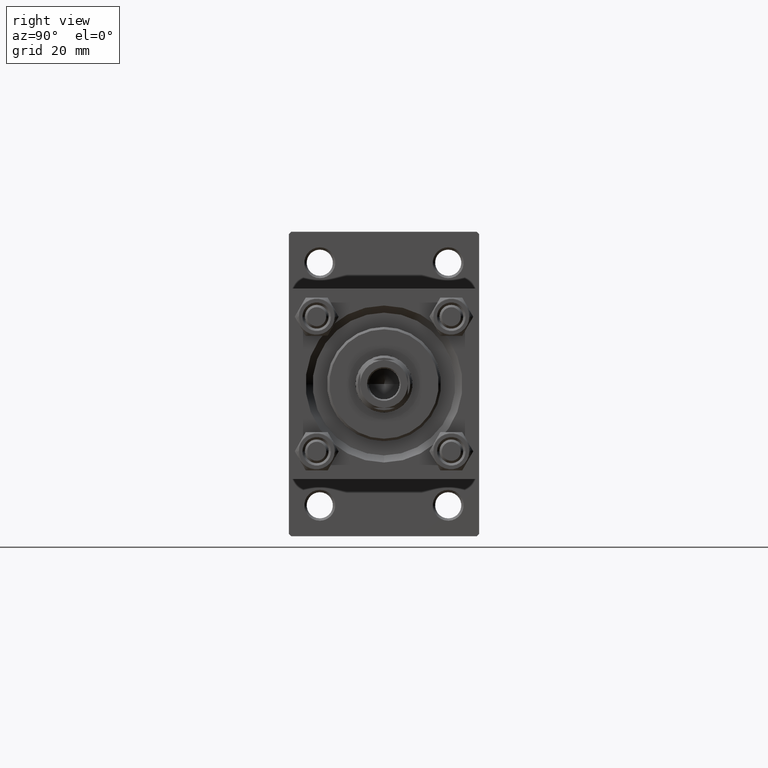
[diagram: clean part render]
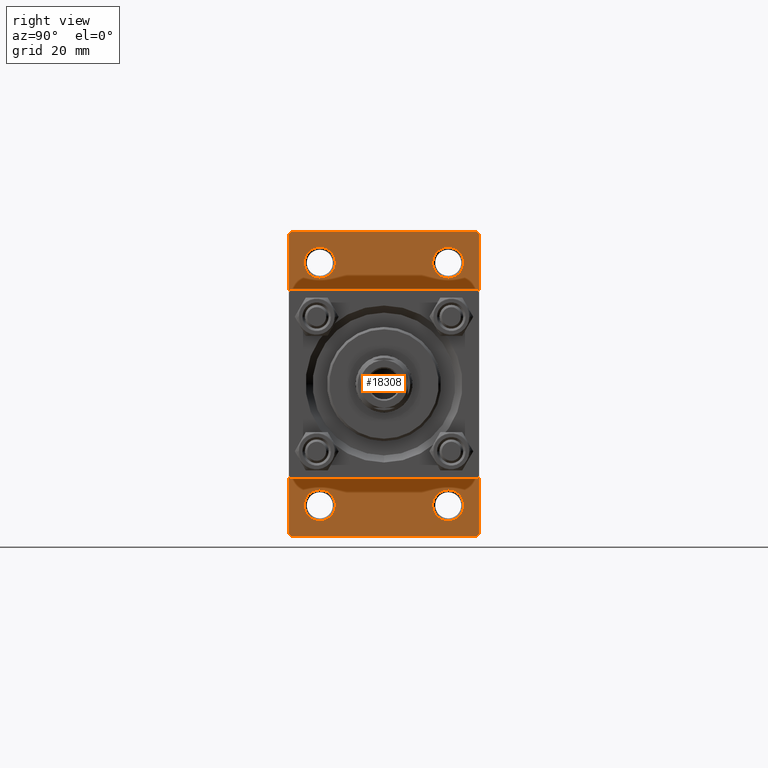
[diagram: same view with one face highlighted and labeled with its STEP entity id]
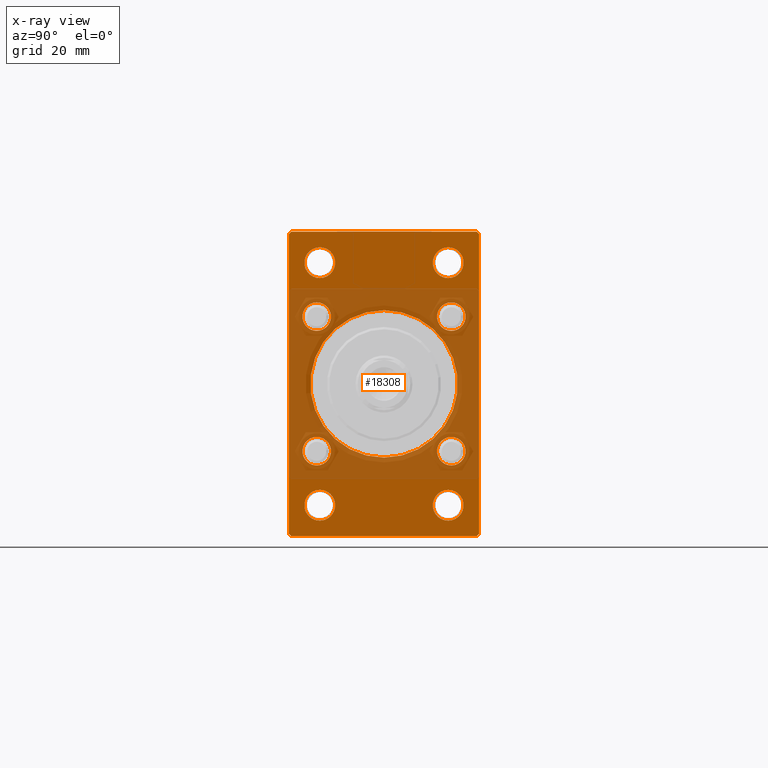
[diagram: x-ray of the same camera — body ghosted, the highlighted face saturated]
A machine part, right view. The second image highlights one B-rep face of the part: STEP entity #18308.
The next image is the same camera in x-ray: the body ghosted, the highlighted face saturated — about 47% of this face is hidden behind the body in this view.
In plain terms, the highlighted planar face has unit normal (-1, 0, 0).
Its self-contained STEP definition (entity closure, byte-faithful):
#479 = DIRECTION ( 'NONE',  ( 0.000000000000000000, 0.000000000000000000, 1.000000000000000000 ) ) ;
#683 = CARTESIAN_POINT ( 'NONE',  ( 24.00000000000000000, -13.49999999999999822, 25.50000000000000000 ) ) ;
#846 = DIRECTION ( 'NONE',  ( 0.000000000000000000, 0.000000000000000000, 1.000000000000000000 ) ) ;
#1159 = ORIENTED_EDGE ( 'NONE', *, *, #47467, .T. ) ;
#1179 = DIRECTION ( 'NONE',  ( -0.000000000000000000, 0.000000000000000000, 1.000000000000000000 ) ) ;
#1367 = DIRECTION ( 'NONE',  ( 0.000000000000000000, 0.000000000000000000, 1.000000000000000000 ) ) ;
#1819 = VERTEX_POINT ( 'NONE', #5042 ) ;
#2037 = CARTESIAN_POINT ( 'NONE',  ( 24.00000000000000000, 19.99999999999999645, -31.50000000000000000 ) ) ;
#2430 = CIRCLE ( 'NONE', #21766, 3.000000000000031974 ) ;
#2528 = EDGE_CURVE ( 'NONE', #35474, #29327, #16515, .T. ) ;
#2803 = DIRECTION ( 'NONE',  ( -1.000000000000000000, -0.000000000000000000, -0.000000000000000000 ) ) ;
#2826 = ORIENTED_EDGE ( 'NONE', *, *, #31630, .T. ) ;
#2852 = DIRECTION ( 'NONE',  ( 0.000000000000000000, 0.000000000000000000, 1.000000000000000000 ) ) ;
#3137 = EDGE_LOOP ( 'NONE', ( #46892, #22978, #37157, #27945, #15565, #35296, #31860, #47646 ) ) ;
#3308 = LINE ( 'NONE', #15152, #22404 ) ;
#3360 = CARTESIAN_POINT ( 'NONE',  ( 24.00000000000000000, -7.038826752868131828E-16, -15.50000000000000000 ) ) ;
#3566 = AXIS2_PLACEMENT_3D ( 'NONE', #6607, #2803, #44702 ) ;
#3744 = EDGE_CURVE ( 'NONE', #1819, #38343, #7910, .T. ) ;
#3836 = DIRECTION ( 'NONE',  ( -1.000000000000000000, -0.000000000000000000, -0.000000000000000000 ) ) ;
#3863 = EDGE_CURVE ( 'NONE', #26877, #15930, #15973, .T. ) ;
#4356 = CARTESIAN_POINT ( 'NONE',  ( 24.00000000000000000, -13.49999999999999822, 25.50000000000000000 ) ) ;
#4721 = FACE_BOUND ( 'NONE', #45243, .T. ) ;
#4783 = AXIS2_PLACEMENT_3D ( 'NONE', #11330, #10338, #22419 ) ;
#4974 = DIRECTION ( 'NONE',  ( -1.000000000000000000, 0.000000000000000000, -0.000000000000000000 ) ) ;
#5042 = CARTESIAN_POINT ( 'NONE',  ( 24.00000000000000000, 13.50000000000000178, 28.74999999999998579 ) ) ;
#5046 = CIRCLE ( 'NONE', #27607, 3.000000000000031974 ) ;
#5214 = CARTESIAN_POINT ( 'NONE',  ( 24.00000000000000000, 0.000000000000000000, 0.000000000000000000 ) ) ;
#5298 = DIRECTION ( 'NONE',  ( 0.000000000000000000, 0.000000000000000000, 1.000000000000000000 ) ) ;
#5543 = EDGE_CURVE ( 'NONE', #46644, #23282, #41028, .T. ) ;
#6012 = ORIENTED_EDGE ( 'NONE', *, *, #38268, .T. ) ;
#6034 = DIRECTION ( 'NONE',  ( 0.000000000000000000, 0.000000000000000000, -1.000000000000000000 ) ) ;
#6164 = DIRECTION ( 'NONE',  ( -1.000000000000000000, -0.000000000000000000, -0.000000000000000000 ) ) ;
#6512 = AXIS2_PLACEMENT_3D ( 'NONE', #22505, #3836, #2852 ) ;
#6588 = VERTEX_POINT ( 'NONE', #47852 ) ;
#6607 = CARTESIAN_POINT ( 'NONE',  ( 24.00000000000000000, 14.14999999999999858, -14.15000000000000036 ) ) ;
#7176 = DIRECTION ( 'NONE',  ( -1.000000000000000000, -0.000000000000000000, -0.000000000000000000 ) ) ;
#7419 = DIRECTION ( 'NONE',  ( 0.000000000000000000, -1.000000000000000000, 0.000000000000000000 ) ) ;
#7535 = CIRCLE ( 'NONE', #35721, 3.249999999999988898 ) ;
#7910 = CIRCLE ( 'NONE', #24028, 3.249999999999988898 ) ;
#7911 = DIRECTION ( 'NONE',  ( -0.000000000000000000, -0.7071067811865426878, -0.7071067811865524577 ) ) ;
#7915 = CARTESIAN_POINT ( 'NONE',  ( 24.00000000000000000, 14.14999999999999858, 14.15000000000000036 ) ) ;
#8157 = LINE ( 'NONE', #19241, #39798 ) ;
#8504 = DIRECTION ( 'NONE',  ( 0.000000000000000000, 0.000000000000000000, 1.000000000000000000 ) ) ;
#8508 = FACE_BOUND ( 'NONE', #12822, .T. ) ;
#8602 = ORIENTED_EDGE ( 'NONE', *, *, #46047, .T. ) ;
#8920 = AXIS2_PLACEMENT_3D ( 'NONE', #30475, #22170, #45882 ) ;
#9011 = FACE_BOUND ( 'NONE', #17672, .T. ) ;
#9056 = DIRECTION ( 'NONE',  ( -1.000000000000000000, -0.000000000000000000, -0.000000000000000000 ) ) ;
#9275 = ORIENTED_EDGE ( 'NONE', *, *, #33301, .T. ) ;
#9620 = CARTESIAN_POINT ( 'NONE',  ( 24.00000000000000000, 13.50000000000000178, 25.50000000000000000 ) ) ;
#9688 = EDGE_CURVE ( 'NONE', #26890, #24531, #12811, .T. ) ;
#10338 = DIRECTION ( 'NONE',  ( -1.000000000000000000, -0.000000000000000000, -0.000000000000000000 ) ) ;
#10657 = EDGE_CURVE ( 'NONE', #35474, #36608, #36088, .T. ) ;
#10896 = LINE ( 'NONE', #23211, #23467 ) ;
#10956 = VERTEX_POINT ( 'NONE', #32932 ) ;
#11027 = CARTESIAN_POINT ( 'NONE',  ( 24.00000000000000000, 13.50000000000000178, -22.25000000000001066 ) ) ;
#11248 = CIRCLE ( 'NONE', #15273, 3.249999999999988898 ) ;
#11330 = CARTESIAN_POINT ( 'NONE',  ( 24.00000000000000000, -14.14999999999999503, 14.15000000000000391 ) ) ;
#11565 = EDGE_CURVE ( 'NONE', #38343, #1819, #35566, .T. ) ;
#11890 = VERTEX_POINT ( 'NONE', #44389 ) ;
#11962 = DIRECTION ( 'NONE',  ( 0.000000000000000000, 0.000000000000000000, 1.000000000000000000 ) ) ;
#11991 = CARTESIAN_POINT ( 'NONE',  ( 24.00000000000000000, 19.99999999999999645, -31.99999999999999289 ) ) ;
#12811 = LINE ( 'NONE', #38825, #24204 ) ;
#12822 = EDGE_LOOP ( 'NONE', ( #31005, #38272 ) ) ;
#12982 = VECTOR ( 'NONE', #32296, 1000.000000000000000 ) ;
#13371 = VERTEX_POINT ( 'NONE', #25268 ) ;
#13535 = CARTESIAN_POINT ( 'NONE',  ( 24.00000000000000000, 14.14999999999999858, -17.15000000000003411 ) ) ;
#13921 = EDGE_CURVE ( 'NONE', #23282, #46644, #46807, .T. ) ;
#13933 = AXIS2_PLACEMENT_3D ( 'NONE', #5214, #4974, #1179 ) ;
#15152 = CARTESIAN_POINT ( 'NONE',  ( 24.00000000000000000, 19.49999999999999645, 32.00000000000000000 ) ) ;
#15273 = AXIS2_PLACEMENT_3D ( 'NONE', #26175, #37803, #34017 ) ;
#15565 = ORIENTED_EDGE ( 'NONE', *, *, #43104, .T. ) ;
#15930 = VERTEX_POINT ( 'NONE', #3360 ) ;
#15973 = CIRCLE ( 'NONE', #44184, 15.50000000000000000 ) ;
#15978 = VERTEX_POINT ( 'NONE', #33391 ) ;
#16014 = DIRECTION ( 'NONE',  ( 1.000000000000000000, 0.000000000000000000, 0.000000000000000000 ) ) ;
#16319 = DIRECTION ( 'NONE',  ( -1.000000000000000000, -0.000000000000000000, -0.000000000000000000 ) ) ;
#16515 = LINE ( 'NONE', #11991, #47345 ) ;
#16560 = FACE_BOUND ( 'NONE', #39095, .T. ) ;
#16851 = CARTESIAN_POINT ( 'NONE',  ( 24.00000000000000000, 14.14999999999999858, -14.15000000000000036 ) ) ;
#17672 = EDGE_LOOP ( 'NONE', ( #41627, #30243 ) ) ;
#17834 = DIRECTION ( 'NONE',  ( -1.000000000000000000, -0.000000000000000000, -0.000000000000000000 ) ) ;
#17843 = AXIS2_PLACEMENT_3D ( 'NONE', #32789, #39866, #5298 ) ;
#18161 = EDGE_LOOP ( 'NONE', ( #46162, #44123 ) ) ;
#18304 = CIRCLE ( 'NONE', #48104, 3.000000000000031974 ) ;
#18308 = ADVANCED_FACE ( 'NONE', ( #24611, #43080, #35744, #4721, #16560, #39781, #8508, #32193, #9011, #35498 ), #23876, .F. ) ;
#18409 = ORIENTED_EDGE ( 'NONE', *, *, #46573, .T. ) ;
#18465 = VERTEX_POINT ( 'NONE', #13535 ) ;
#18470 = CARTESIAN_POINT ( 'NONE',  ( 24.00000000000000000, 19.49999999999999645, -31.99999999999999289 ) ) ;
#18523 = CARTESIAN_POINT ( 'NONE',  ( 24.00000000000000000, -20.00000000000000355, 31.50000000000000711 ) ) ;
#18695 = DIRECTION ( 'NONE',  ( 0.000000000000000000, -0.7071067811865474617, 0.7071067811865474617 ) ) ;
#19157 = AXIS2_PLACEMENT_3D ( 'NONE', #4356, #30832, #46239 ) ;
#19241 = CARTESIAN_POINT ( 'NONE',  ( 24.00000000000000000, 19.99999999999999645, 32.00000000000000000 ) ) ;
#20210 = CARTESIAN_POINT ( 'NONE',  ( 24.00000000000000000, 19.99999999999999645, 31.50000000000000000 ) ) ;
#20454 = DIRECTION ( 'NONE',  ( 0.000000000000000000, 0.000000000000000000, 1.000000000000000000 ) ) ;
#21321 = AXIS2_PLACEMENT_3D ( 'NONE', #43932, #34672, #11962 ) ;
#21672 = EDGE_CURVE ( 'NONE', #36410, #36608, #33751, .T. ) ;
#21766 = AXIS2_PLACEMENT_3D ( 'NONE', #7915, #43230, #846 ) ;
#22122 = CARTESIAN_POINT ( 'NONE',  ( 24.00000000000000000, 13.50000000000000178, -28.74999999999998579 ) ) ;
#22170 = DIRECTION ( 'NONE',  ( -1.000000000000000000, -0.000000000000000000, -0.000000000000000000 ) ) ;
#22404 = VECTOR ( 'NONE', #18695, 1000.000000000000114 ) ;
#22419 = DIRECTION ( 'NONE',  ( 0.000000000000000000, 0.000000000000000000, 1.000000000000000000 ) ) ;
#22505 = CARTESIAN_POINT ( 'NONE',  ( 24.00000000000000000, -13.49999999999999822, -25.50000000000000000 ) ) ;
#22871 = EDGE_CURVE ( 'NONE', #15978, #18465, #18304, .T. ) ;
#22923 = VERTEX_POINT ( 'NONE', #38840 ) ;
#22978 = ORIENTED_EDGE ( 'NONE', *, *, #10657, .T. ) ;
#23211 = CARTESIAN_POINT ( 'NONE',  ( 24.00000000000000000, -19.49999999999999645, -31.99999999999999289 ) ) ;
#23282 = VERTEX_POINT ( 'NONE', #25600 ) ;
#23467 = VECTOR ( 'NONE', #34838, 1000.000000000000000 ) ;
#23521 = CARTESIAN_POINT ( 'NONE',  ( 24.00000000000000000, -19.49999999999999645, -31.99999999999999289 ) ) ;
#23876 = PLANE ( 'NONE',  #13933 ) ;
#23934 = ORIENTED_EDGE ( 'NONE', *, *, #37967, .T. ) ;
#24028 = AXIS2_PLACEMENT_3D ( 'NONE', #29419, #17834, #40287 ) ;
#24204 = VECTOR ( 'NONE', #35033, 1000.000000000000000 ) ;
#24531 = VERTEX_POINT ( 'NONE', #31577 ) ;
#24611 = FACE_BOUND ( 'NONE', #18161, .T. ) ;
#25268 = CARTESIAN_POINT ( 'NONE',  ( 24.00000000000000000, 19.49999999999999645, 32.00000000000000000 ) ) ;
#25320 = EDGE_CURVE ( 'NONE', #29735, #11890, #43343, .T. ) ;
#25484 = DIRECTION ( 'NONE',  ( 0.000000000000000000, 0.000000000000000000, 1.000000000000000000 ) ) ;
#25533 = VERTEX_POINT ( 'NONE', #42398 ) ;
#25564 = CARTESIAN_POINT ( 'NONE',  ( 24.00000000000000000, -13.49999999999999822, -22.25000000000001066 ) ) ;
#25597 = EDGE_CURVE ( 'NONE', #36410, #13371, #3308, .T. ) ;
#25600 = CARTESIAN_POINT ( 'NONE',  ( 24.00000000000000000, -14.14999999999999503, 11.15000000000004121 ) ) ;
#25867 = AXIS2_PLACEMENT_3D ( 'NONE', #9620, #28522, #20454 ) ;
#25888 = CIRCLE ( 'NONE', #17843, 2.999999999999962697 ) ;
#26175 = CARTESIAN_POINT ( 'NONE',  ( 24.00000000000000000, -13.49999999999999822, -25.50000000000000000 ) ) ;
#26877 = VERTEX_POINT ( 'NONE', #29194 ) ;
#26890 = VERTEX_POINT ( 'NONE', #40813 ) ;
#27607 = AXIS2_PLACEMENT_3D ( 'NONE', #44792, #7176, #29383 ) ;
#27945 = ORIENTED_EDGE ( 'NONE', *, *, #25597, .T. ) ;
#28522 = DIRECTION ( 'NONE',  ( -1.000000000000000000, -0.000000000000000000, -0.000000000000000000 ) ) ;
#29194 = CARTESIAN_POINT ( 'NONE',  ( 24.00000000000000000, -2.602085213965210642E-15, 15.50000000000000000 ) ) ;
#29213 = EDGE_LOOP ( 'NONE', ( #18409, #38502 ) ) ;
#29282 = DIRECTION ( 'NONE',  ( -1.000000000000000000, -0.000000000000000000, -0.000000000000000000 ) ) ;
#29327 = VERTEX_POINT ( 'NONE', #23521 ) ;
#29383 = DIRECTION ( 'NONE',  ( 0.000000000000000000, 0.000000000000000000, 1.000000000000000000 ) ) ;
#29408 = CARTESIAN_POINT ( 'NONE',  ( 24.00000000000000000, -14.14999999999999503, 17.14999999999996660 ) ) ;
#29419 = CARTESIAN_POINT ( 'NONE',  ( 24.00000000000000000, 13.50000000000000178, 25.50000000000000000 ) ) ;
#29735 = VERTEX_POINT ( 'NONE', #47370 ) ;
#29765 = CARTESIAN_POINT ( 'NONE',  ( 24.00000000000000000, 13.50000000000000178, -25.50000000000000000 ) ) ;
#29871 = DIRECTION ( 'NONE',  ( -1.000000000000000000, -0.000000000000000000, -0.000000000000000000 ) ) ;
#30243 = ORIENTED_EDGE ( 'NONE', *, *, #45976, .F. ) ;
#30475 = CARTESIAN_POINT ( 'NONE',  ( 24.00000000000000000, -14.14999999999999503, 14.15000000000000391 ) ) ;
#30832 = DIRECTION ( 'NONE',  ( -1.000000000000000000, -0.000000000000000000, -0.000000000000000000 ) ) ;
#31005 = ORIENTED_EDGE ( 'NONE', *, *, #13921, .T. ) ;
#31577 = CARTESIAN_POINT ( 'NONE',  ( 24.00000000000000000, -20.00000000000000355, -31.49999999999997158 ) ) ;
#31630 = EDGE_CURVE ( 'NONE', #22923, #49592, #42651, .T. ) ;
#31860 = ORIENTED_EDGE ( 'NONE', *, *, #9688, .T. ) ;
#32193 = FACE_BOUND ( 'NONE', #36043, .T. ) ;
#32296 = DIRECTION ( 'NONE',  ( -0.000000000000000000, 0.7071067811865524577, 0.7071067811865426878 ) ) ;
#32550 = CIRCLE ( 'NONE', #3566, 3.000000000000031974 ) ;
#32714 = VECTOR ( 'NONE', #6034, 1000.000000000000000 ) ;
#32789 = CARTESIAN_POINT ( 'NONE',  ( 24.00000000000000000, -14.14999999999999503, -14.15000000000000391 ) ) ;
#32932 = CARTESIAN_POINT ( 'NONE',  ( 24.00000000000000000, 14.14999999999999858, 17.15000000000003411 ) ) ;
#33146 = CARTESIAN_POINT ( 'NONE',  ( 24.00000000000000000, 13.50000000000000178, -25.50000000000000000 ) ) ;
#33301 = EDGE_CURVE ( 'NONE', #49592, #22923, #11248, .T. ) ;
#33391 = CARTESIAN_POINT ( 'NONE',  ( 24.00000000000000000, 14.14999999999999858, -11.14999999999997016 ) ) ;
#33751 = LINE ( 'NONE', #48159, #32714 ) ;
#33862 = VERTEX_POINT ( 'NONE', #11027 ) ;
#33920 = VERTEX_POINT ( 'NONE', #22122 ) ;
#33989 = ORIENTED_EDGE ( 'NONE', *, *, #34280, .T. ) ;
#34015 = CARTESIAN_POINT ( 'NONE',  ( 24.00000000000000000, 14.14999999999999858, 11.14999999999997016 ) ) ;
#34017 = DIRECTION ( 'NONE',  ( 0.000000000000000000, 0.000000000000000000, 1.000000000000000000 ) ) ;
#34219 = CIRCLE ( 'NONE', #38970, 3.249999999999988898 ) ;
#34280 = EDGE_CURVE ( 'NONE', #10956, #48523, #2430, .T. ) ;
#34311 = ORIENTED_EDGE ( 'NONE', *, *, #46985, .T. ) ;
#34672 = DIRECTION ( 'NONE',  ( 1.000000000000000000, 0.000000000000000000, 0.000000000000000000 ) ) ;
#34838 = DIRECTION ( 'NONE',  ( 0.000000000000000000, 0.7071067811865378028, -0.7071067811865573427 ) ) ;
#35033 = DIRECTION ( 'NONE',  ( 0.000000000000000000, 0.000000000000000000, -1.000000000000000000 ) ) ;
#35296 = ORIENTED_EDGE ( 'NONE', *, *, #38473, .T. ) ;
#35474 = VERTEX_POINT ( 'NONE', #18470 ) ;
#35498 = FACE_OUTER_BOUND ( 'NONE', #3137, .T. ) ;
#35566 = CIRCLE ( 'NONE', #25867, 3.249999999999988898 ) ;
#35721 = AXIS2_PLACEMENT_3D ( 'NONE', #33146, #6164, #39958 ) ;
#35744 = FACE_BOUND ( 'NONE', #43609, .T. ) ;
#35934 = CARTESIAN_POINT ( 'NONE',  ( 24.00000000000000000, -2.602085213965210642E-15, 0.000000000000000000 ) ) ;
#36043 = EDGE_LOOP ( 'NONE', ( #45840, #33989 ) ) ;
#36088 = LINE ( 'NONE', #2037, #12982 ) ;
#36410 = VERTEX_POINT ( 'NONE', #20210 ) ;
#36608 = VERTEX_POINT ( 'NONE', #41479 ) ;
#36629 = CIRCLE ( 'NONE', #21321, 15.50000000000000000 ) ;
#36935 = CARTESIAN_POINT ( 'NONE',  ( 24.00000000000000000, -14.14999999999999503, -17.14999999999996660 ) ) ;
#37157 = ORIENTED_EDGE ( 'NONE', *, *, #21672, .F. ) ;
#37225 = CIRCLE ( 'NONE', #42045, 2.999999999999962697 ) ;
#37800 = EDGE_CURVE ( 'NONE', #24531, #29327, #10896, .T. ) ;
#37803 = DIRECTION ( 'NONE',  ( -1.000000000000000000, -0.000000000000000000, -0.000000000000000000 ) ) ;
#37967 = EDGE_CURVE ( 'NONE', #6588, #48095, #25888, .T. ) ;
#38173 = CIRCLE ( 'NONE', #49476, 3.249999999999988898 ) ;
#38268 = EDGE_CURVE ( 'NONE', #48095, #6588, #37225, .T. ) ;
#38272 = ORIENTED_EDGE ( 'NONE', *, *, #5543, .T. ) ;
#38343 = VERTEX_POINT ( 'NONE', #45030 ) ;
#38473 = EDGE_CURVE ( 'NONE', #25533, #26890, #42482, .T. ) ;
#38502 = ORIENTED_EDGE ( 'NONE', *, *, #25320, .T. ) ;
#38825 = CARTESIAN_POINT ( 'NONE',  ( 24.00000000000000000, -20.00000000000000355, 32.00000000000000000 ) ) ;
#38840 = CARTESIAN_POINT ( 'NONE',  ( 24.00000000000000000, -13.49999999999999822, -28.74999999999998579 ) ) ;
#38970 = AXIS2_PLACEMENT_3D ( 'NONE', #29765, #29282, #25484 ) ;
#39095 = EDGE_LOOP ( 'NONE', ( #6012, #23934 ) ) ;
#39781 = FACE_BOUND ( 'NONE', #40691, .T. ) ;
#39798 = VECTOR ( 'NONE', #7419, 1000.000000000000000 ) ;
#39866 = DIRECTION ( 'NONE',  ( -1.000000000000000000, -0.000000000000000000, -0.000000000000000000 ) ) ;
#39958 = DIRECTION ( 'NONE',  ( 0.000000000000000000, 0.000000000000000000, 1.000000000000000000 ) ) ;
#40242 = DIRECTION ( 'NONE',  ( 0.000000000000000000, 0.000000000000000000, 1.000000000000000000 ) ) ;
#40287 = DIRECTION ( 'NONE',  ( 0.000000000000000000, 0.000000000000000000, 1.000000000000000000 ) ) ;
#40691 = EDGE_LOOP ( 'NONE', ( #1159, #45108 ) ) ;
#40813 = CARTESIAN_POINT ( 'NONE',  ( 24.00000000000000000, -20.00000000000000355, 31.50000000000000711 ) ) ;
#41006 = CARTESIAN_POINT ( 'NONE',  ( 24.00000000000000000, -14.14999999999999503, -14.15000000000000391 ) ) ;
#41028 = CIRCLE ( 'NONE', #4783, 2.999999999999962697 ) ;
#41466 = EDGE_CURVE ( 'NONE', #48523, #10956, #5046, .T. ) ;
#41479 = CARTESIAN_POINT ( 'NONE',  ( 24.00000000000000000, 19.99999999999999645, -31.50000000000000000 ) ) ;
#41627 = ORIENTED_EDGE ( 'NONE', *, *, #3863, .F. ) ;
#42045 = AXIS2_PLACEMENT_3D ( 'NONE', #41006, #29871, #40242 ) ;
#42398 = CARTESIAN_POINT ( 'NONE',  ( 24.00000000000000000, -19.50000000000001776, 32.00000000000000000 ) ) ;
#42482 = LINE ( 'NONE', #18523, #43655 ) ;
#42651 = CIRCLE ( 'NONE', #6512, 3.249999999999988898 ) ;
#43080 = FACE_BOUND ( 'NONE', #29213, .T. ) ;
#43104 = EDGE_CURVE ( 'NONE', #13371, #25533, #8157, .T. ) ;
#43230 = DIRECTION ( 'NONE',  ( -1.000000000000000000, -0.000000000000000000, -0.000000000000000000 ) ) ;
#43343 = CIRCLE ( 'NONE', #19157, 3.249999999999988898 ) ;
#43609 = EDGE_LOOP ( 'NONE', ( #2826, #9275 ) ) ;
#43655 = VECTOR ( 'NONE', #7911, 1000.000000000000000 ) ;
#43932 = CARTESIAN_POINT ( 'NONE',  ( 24.00000000000000000, -2.602085213965210642E-15, 0.000000000000000000 ) ) ;
#44123 = ORIENTED_EDGE ( 'NONE', *, *, #3744, .T. ) ;
#44184 = AXIS2_PLACEMENT_3D ( 'NONE', #35934, #16014, #1367 ) ;
#44389 = CARTESIAN_POINT ( 'NONE',  ( 24.00000000000000000, -13.49999999999999822, 22.25000000000001066 ) ) ;
#44702 = DIRECTION ( 'NONE',  ( 0.000000000000000000, 0.000000000000000000, 1.000000000000000000 ) ) ;
#44792 = CARTESIAN_POINT ( 'NONE',  ( 24.00000000000000000, 14.14999999999999858, 14.15000000000000036 ) ) ;
#45030 = CARTESIAN_POINT ( 'NONE',  ( 24.00000000000000000, 13.50000000000000178, 22.25000000000001066 ) ) ;
#45108 = ORIENTED_EDGE ( 'NONE', *, *, #22871, .T. ) ;
#45243 = EDGE_LOOP ( 'NONE', ( #34311, #8602 ) ) ;
#45840 = ORIENTED_EDGE ( 'NONE', *, *, #41466, .T. ) ;
#45882 = DIRECTION ( 'NONE',  ( 0.000000000000000000, 0.000000000000000000, 1.000000000000000000 ) ) ;
#45976 = EDGE_CURVE ( 'NONE', #15930, #26877, #36629, .T. ) ;
#46047 = EDGE_CURVE ( 'NONE', #33862, #33920, #34219, .T. ) ;
#46162 = ORIENTED_EDGE ( 'NONE', *, *, #11565, .T. ) ;
#46239 = DIRECTION ( 'NONE',  ( 0.000000000000000000, 0.000000000000000000, 1.000000000000000000 ) ) ;
#46573 = EDGE_CURVE ( 'NONE', #11890, #29735, #38173, .T. ) ;
#46644 = VERTEX_POINT ( 'NONE', #29408 ) ;
#46807 = CIRCLE ( 'NONE', #8920, 2.999999999999962697 ) ;
#46892 = ORIENTED_EDGE ( 'NONE', *, *, #2528, .F. ) ;
#46985 = EDGE_CURVE ( 'NONE', #33920, #33862, #7535, .T. ) ;
#47299 = DIRECTION ( 'NONE',  ( 0.000000000000000000, -1.000000000000000000, 0.000000000000000000 ) ) ;
#47345 = VECTOR ( 'NONE', #47299, 1000.000000000000000 ) ;
#47370 = CARTESIAN_POINT ( 'NONE',  ( 24.00000000000000000, -13.49999999999999822, 28.74999999999998579 ) ) ;
#47467 = EDGE_CURVE ( 'NONE', #18465, #15978, #32550, .T. ) ;
#47646 = ORIENTED_EDGE ( 'NONE', *, *, #37800, .T. ) ;
#47852 = CARTESIAN_POINT ( 'NONE',  ( 24.00000000000000000, -14.14999999999999503, -11.15000000000004121 ) ) ;
#48095 = VERTEX_POINT ( 'NONE', #36935 ) ;
#48104 = AXIS2_PLACEMENT_3D ( 'NONE', #16851, #9056, #479 ) ;
#48159 = CARTESIAN_POINT ( 'NONE',  ( 24.00000000000000000, 19.99999999999999645, 32.00000000000000000 ) ) ;
#48523 = VERTEX_POINT ( 'NONE', #34015 ) ;
#49476 = AXIS2_PLACEMENT_3D ( 'NONE', #683, #16319, #8504 ) ;
#49592 = VERTEX_POINT ( 'NONE', #25564 ) ;